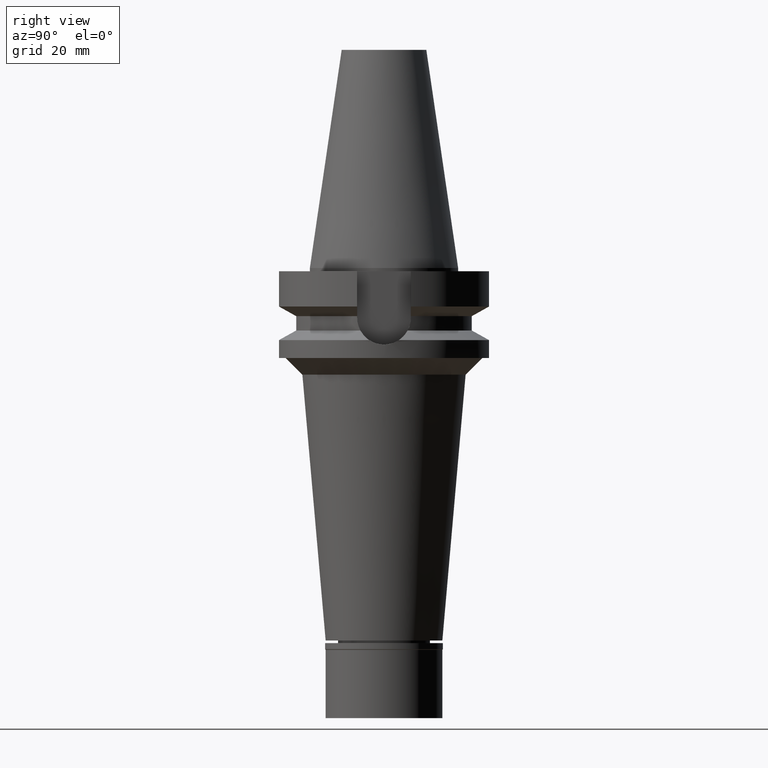
[diagram: clean part render]
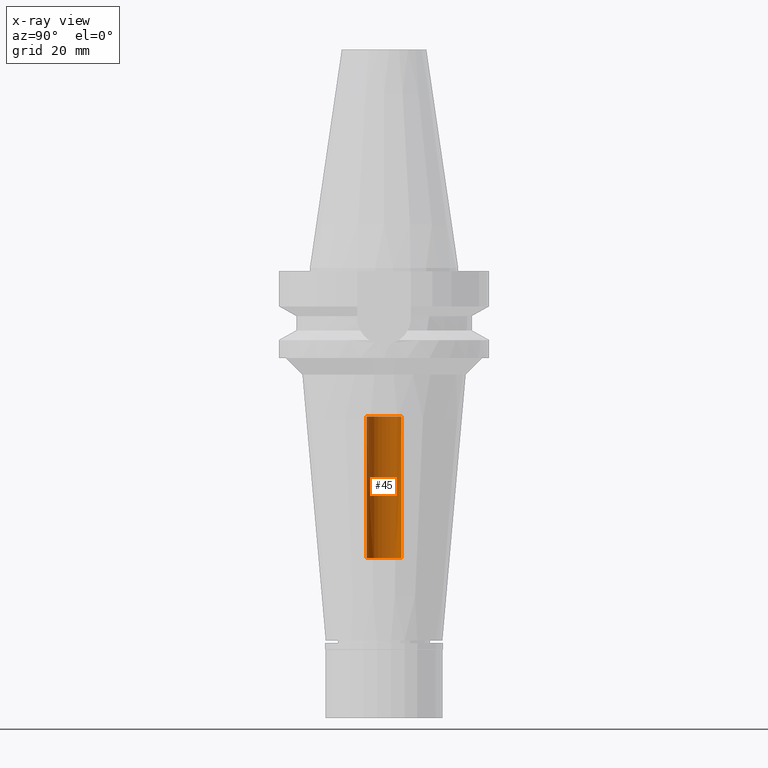
[diagram: x-ray — body ghosted, one internal face saturated and labeled with its STEP entity id]
A machine part, right view, then the same camera in x-ray: the body is ghosted and one INTERNAL B-rep face — a face not visible from any outside direction — is saturated and labeled: STEP entity #45.
In plain terms, the highlighted cylindrical surface (edge-blend (fillet) strip) has radius 5.2 mm, axis along (0, 0, -1).
Its self-contained STEP definition (entity closure, byte-faithful):
#45 = ADVANCED_FACE ( 'NONE', ( #2282 ), #605, .F. ) ;
#52 = ORIENTED_EDGE ( 'NONE', *, *, #2815, .T. ) ;
#159 = CARTESIAN_POINT ( 'NONE',  ( 0.0000000000000000000, 5.200000000000000178, -87.00000000000000000 ) ) ;
#209 = CIRCLE ( 'NONE', #1335, 5.200000000000000178 ) ;
#305 = CARTESIAN_POINT ( 'NONE',  ( 0.0000000000000000000, 2.144172848286999836E-14, 75.08499999999999375 ) ) ;
#345 = DIRECTION ( 'NONE',  ( 0.0000000000000000000, -1.000000000000000000, 0.0000000000000000000 ) ) ;
#351 = ORIENTED_EDGE ( 'NONE', *, *, #1723, .T. ) ;
#412 = VERTEX_POINT ( 'NONE', #2722 ) ;
#555 = CARTESIAN_POINT ( 'NONE',  ( 0.0000000000000000000, -5.200000000000000178, -87.00000000000000000 ) ) ;
#605 = CYLINDRICAL_SURFACE ( 'NONE', #2460, 5.200000000000000178 ) ;
#637 = CARTESIAN_POINT ( 'NONE',  ( 0.0000000000000000000, -5.200000000000000178, -87.00000000000000000 ) ) ;
#696 = CIRCLE ( 'NONE', #1102, 5.200000000000000178 ) ;
#732 = DIRECTION ( 'NONE',  ( 0.0000000000000000000, 0.0000000000000000000, 1.000000000000000000 ) ) ;
#803 = LINE ( 'NONE', #555, #1549 ) ;
#835 = CARTESIAN_POINT ( 'NONE',  ( 0.0000000000000000000, 2.144172848286999836E-14, -87.00000000000000000 ) ) ;
#884 = VERTEX_POINT ( 'NONE', #2810 ) ;
#958 = CARTESIAN_POINT ( 'NONE',  ( 0.0000000000000000000, 2.144172848286999836E-14, -44.60000000000000142 ) ) ;
#1069 = DIRECTION ( 'NONE',  ( 0.0000000000000000000, 0.0000000000000000000, -1.000000000000000000 ) ) ;
#1102 = AXIS2_PLACEMENT_3D ( 'NONE', #958, #732, #1936 ) ;
#1283 = EDGE_CURVE ( 'NONE', #2595, #884, #803, .T. ) ;
#1316 = DIRECTION ( 'NONE',  ( 0.0000000000000000000, -1.000000000000000000, 0.0000000000000000000 ) ) ;
#1335 = AXIS2_PLACEMENT_3D ( 'NONE', #835, #1069, #1316 ) ;
#1344 = VECTOR ( 'NONE', #2342, 1000.000000000000000 ) ;
#1363 = EDGE_CURVE ( 'NONE', #1700, #412, #2322, .T. ) ;
#1422 = CARTESIAN_POINT ( 'NONE',  ( 0.0000000000000000000, 5.200000000000000178, -87.00000000000000000 ) ) ;
#1511 = DIRECTION ( 'NONE',  ( 0.0000000000000000000, 0.0000000000000000000, 1.000000000000000000 ) ) ;
#1549 = VECTOR ( 'NONE', #1511, 1000.000000000000000 ) ;
#1650 = ORIENTED_EDGE ( 'NONE', *, *, #1283, .F. ) ;
#1700 = VERTEX_POINT ( 'NONE', #1422 ) ;
#1723 = EDGE_CURVE ( 'NONE', #412, #884, #696, .T. ) ;
#1936 = DIRECTION ( 'NONE',  ( 0.0000000000000000000, 1.000000000000000000, 0.0000000000000000000 ) ) ;
#2190 = EDGE_LOOP ( 'NONE', ( #351, #1650, #52, #2698 ) ) ;
#2282 = FACE_OUTER_BOUND ( 'NONE', #2190, .T. ) ;
#2322 = LINE ( 'NONE', #159, #1344 ) ;
#2342 = DIRECTION ( 'NONE',  ( 0.0000000000000000000, 0.0000000000000000000, 1.000000000000000000 ) ) ;
#2460 = AXIS2_PLACEMENT_3D ( 'NONE', #305, #2540, #345 ) ;
#2540 = DIRECTION ( 'NONE',  ( 0.0000000000000000000, 0.0000000000000000000, -1.000000000000000000 ) ) ;
#2595 = VERTEX_POINT ( 'NONE', #637 ) ;
#2698 = ORIENTED_EDGE ( 'NONE', *, *, #1363, .T. ) ;
#2722 = CARTESIAN_POINT ( 'NONE',  ( 0.0000000000000000000, 5.200000000000000178, -44.60000000000000142 ) ) ;
#2810 = CARTESIAN_POINT ( 'NONE',  ( 0.0000000000000000000, -5.200000000000000178, -44.60000000000000142 ) ) ;
#2815 = EDGE_CURVE ( 'NONE', #2595, #1700, #209, .T. ) ;